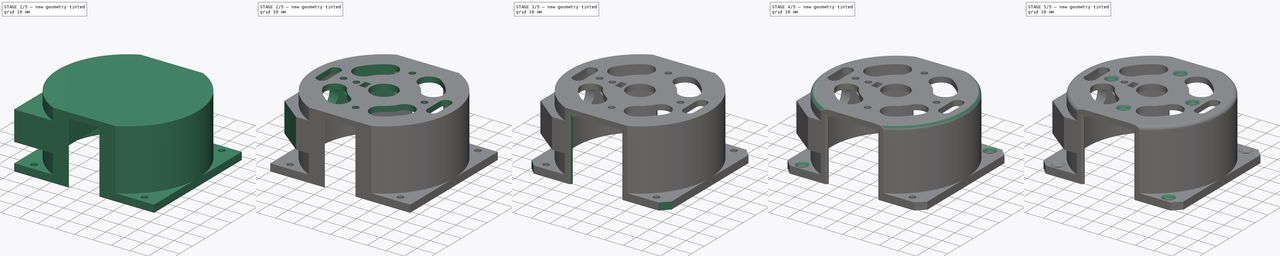
[diagram: build sequence overview — one tinted view per stage of 5, left to right]
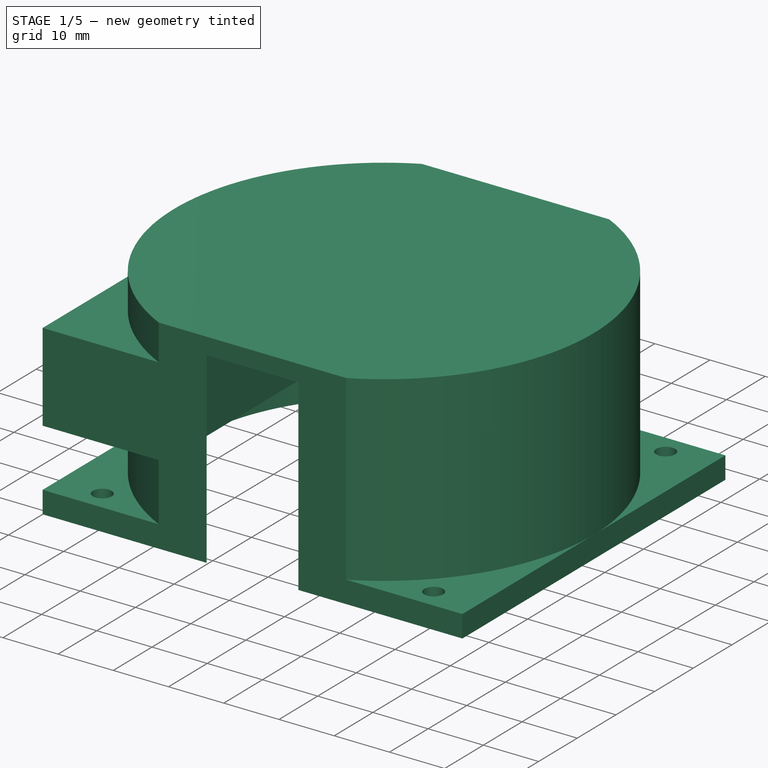
[diagram: stage 1 of 5 — iso view after this stage's code; geometry added in this stage tinted green]
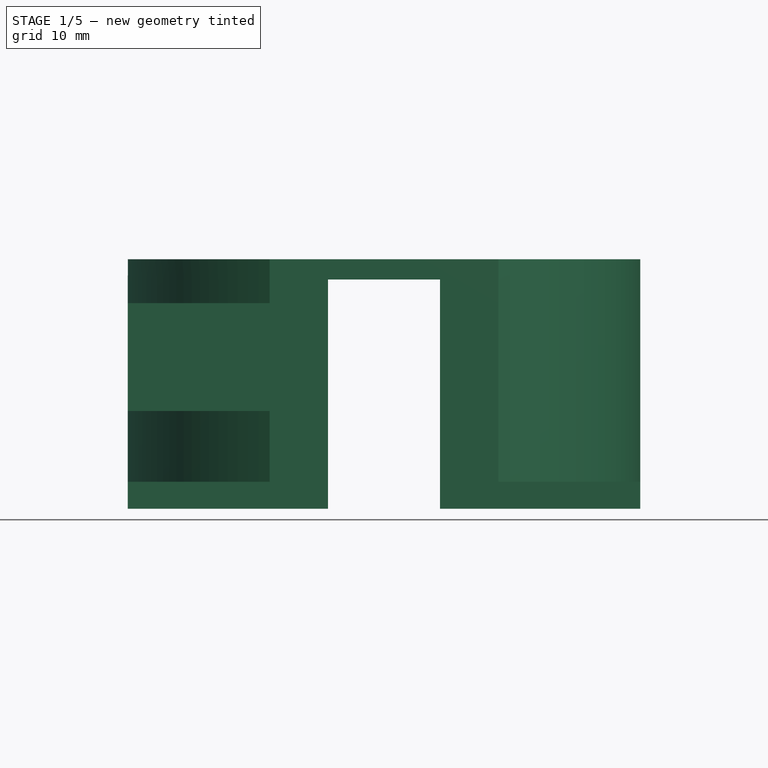
[diagram: stage 1 of 5 — front view after this stage's code; geometry added in this stage tinted green]
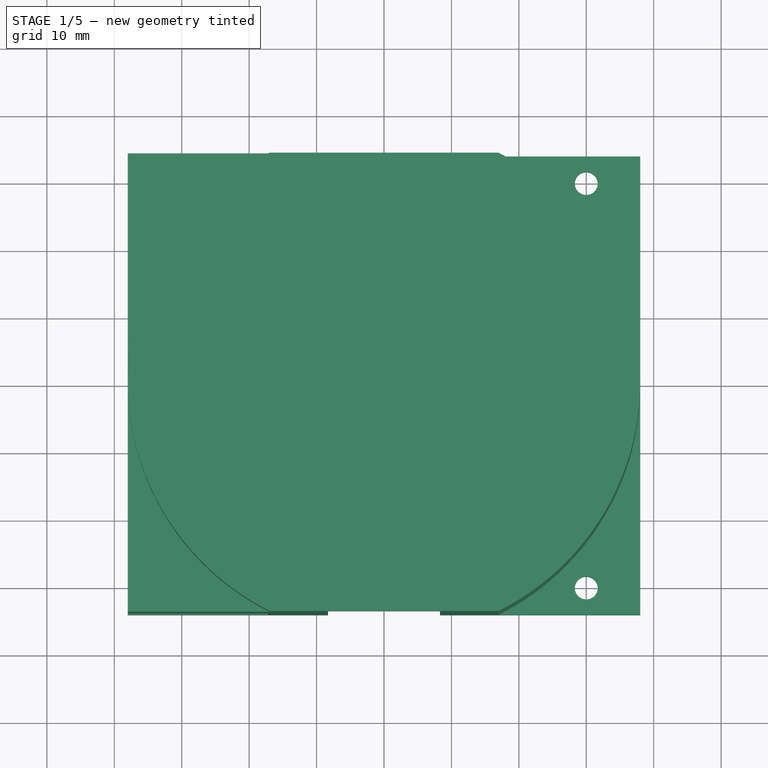
[diagram: stage 1 of 5 — top view after this stage's code; geometry added in this stage tinted green]
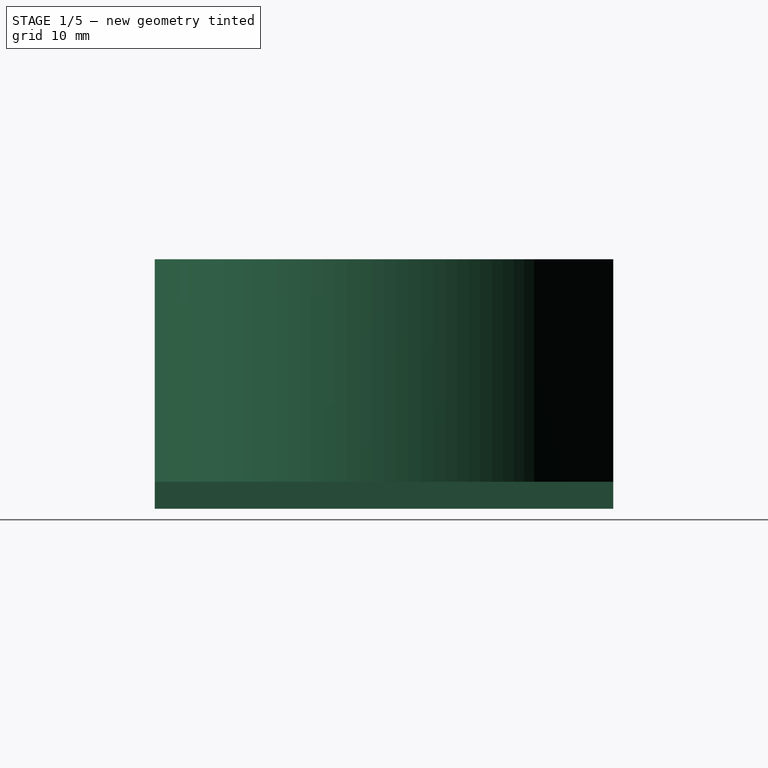
[diagram: stage 1 of 5 — right view after this stage's code; geometry added in this stage tinted green]
FCSTD DOCUMENT  (FreeCAD 0.16R6706 (Git))
Label: MotorMountMT5208V3
License: All rights reserved
LicenseURL: http://en.wikipedia.org/wiki/All_rights_reserved
objects: Sketcher::SketchObject×12, PartDesign::Pocket×9, PartDesign::Chamfer×8, PartDesign::Fillet×6, PartDesign::Pad×3
note: 50 computed .brp shape members not serialized (recipe doc carries the construction recipe); baked Part::Feature solids carry a one-line shape summary decoded from their .brp

FEATURE [Sketcher::SketchObject] Sketch
  sketch-geometry (14):
    g0: Circle CenterX=0 CenterY=0 CenterZ=0 NormalX=0 NormalY=0 NormalZ=1 Radius=35
    g1: LineSegment [constr] StartX=-30 StartY=30 StartZ=0 EndX=30 EndY=30 EndZ=0
    g2: LineSegment [constr] StartX=30 StartY=30 StartZ=0 EndX=30 EndY=-30 EndZ=0
    g3: LineSegment [constr] StartX=30 StartY=-30 StartZ=0 EndX=-30 EndY=-30 EndZ=0
    g4: LineSegment [constr] StartX=-30 StartY=-30 StartZ=0 EndX=-30 EndY=30 EndZ=0
    g5: Circle CenterX=-30 CenterY=30 CenterZ=0 NormalX=0 NormalY=0 NormalZ=1 Radius=1.7
    g6: Circle CenterX=30 CenterY=30 CenterZ=0 NormalX=0 NormalY=0 NormalZ=1 Radius=1.7
    g7: Circle CenterX=30 CenterY=-30 CenterZ=0 NormalX=0 NormalY=0 NormalZ=1 Radius=1.7
    g8: Circle CenterX=-30 CenterY=-30 CenterZ=0 NormalX=0 NormalY=0 NormalZ=1 Radius=1.7
    g9: Circle [constr] CenterX=30 CenterY=30 CenterZ=0 NormalX=0 NormalY=0 NormalZ=1 Radius=3
    g10: LineSegment StartX=-38 StartY=38 StartZ=0 EndX=38 EndY=38 EndZ=0
    g11: LineSegment StartX=38 StartY=38 StartZ=0 EndX=38 EndY=-38 EndZ=0
    g12: LineSegment StartX=38 StartY=-38 StartZ=0 EndX=-38 EndY=-38 EndZ=0
    g13: LineSegment StartX=-38 StartY=-38 StartZ=0 EndX=-38 EndY=38 EndZ=0
  constraints (34):
    c: Radius(g0) = 35
    c: Coincident(g1,g2)
    c: Coincident(g2,g3)
    c: Coincident(g3,g4)
    c: Coincident(g4,g1)
    c: Horizontal(g1)
    c: Horizontal(g3)
    c: Vertical(g2)
    c: Vertical(g4)
    c: Coincident(g5,g1)
    c: Coincident(g6,g1)
    c: Coincident(g7,g2)
    c: Coincident(g8,g3)
    c: Radius(g5) = 1.7
    c: Equal(g5,g8)
    c: Equal(g5,g7)
    c: Equal(g5,g6)
    c: Symmetric(g1,g2,g-1)
    c: Equal(g1,g2)
    c: Coincident(g9,g1)
    c: Radius(g9) = 3
    c: DistanceX(g1,g1) = 60
    c: Coincident(g10,g11)
    c: Coincident(g11,g12)
    c: Coincident(g12,g13)
    c: Coincident(g13,g10)
    c: Horizontal(g10)
    c: Horizontal(g12)
    c: Vertical(g11)
    c: Vertical(g13)
    c: Symmetric(g11,g10,g-1)
    c: Equal(g13,g10)
    c: DistanceY(g13,g13) = 76
    c: Coincident(g-1,g0)
FEATURE [PartDesign::Pad] Pad
  Length = 34
  Length2 = 100
  Sketch = -> Sketch
  Type = 0
FEATURE [Sketcher::SketchObject] Sketch001
  Placement = pos=(0,0,34) rot=(0,0,1;0rad)
  Support = -> Pad [Face11]
  sketch-geometry (2):
    g0: Circle CenterX=0 CenterY=0 CenterZ=0 NormalX=0 NormalY=0 NormalZ=1 Radius=38
    g1: Circle CenterX=0 CenterY=0 CenterZ=0 NormalX=0 NormalY=0 NormalZ=1 Radius=60
  constraints (4):
    c: Coincident(g0,g-1)
    c: Coincident(g1,g-1)
    c: Radius(g1) = 60
    c: Radius(g0) = 38
FEATURE [PartDesign::Pocket] Pocket
  Length = 30
  Sketch = -> Sketch001
  Type = 0
FEATURE [Sketcher::SketchObject] Sketch002
  Placement = pos=(0,0,34) rot=(0,0,1;0rad)
  Support = -> Pocket [Face17]
  sketch-geometry (1):
    g0: Circle CenterX=0 CenterY=0 CenterZ=0 NormalX=0 NormalY=0 NormalZ=1 Radius=38
  constraints (2):
    c: Coincident(g0,g-1)
    c: Radius(g0) = 38
FEATURE [PartDesign::Pad] Pad001
  Length = 3
  Length2 = 100
  Sketch = -> Sketch002
  Type = 0
FEATURE [Sketcher::SketchObject] Sketch003
  Placement = pos=(0,0,37) rot=(0,0,1;0rad)
  Support = -> Pad001 [Face21]
  sketch-geometry (8):
    g0: LineSegment StartX=-40 StartY=34 StartZ=0 EndX=40 EndY=34 EndZ=0
    g1: LineSegment StartX=40 StartY=34 StartZ=0 EndX=40 EndY=-34 EndZ=0
    g2: LineSegment StartX=40 StartY=-34 StartZ=0 EndX=-40 EndY=-34 EndZ=0
    g3: LineSegment StartX=-40 StartY=-34 StartZ=0 EndX=-40 EndY=34 EndZ=0
    g4: LineSegment StartX=-50 StartY=50 StartZ=0 EndX=50 EndY=50 EndZ=0
    g5: LineSegment StartX=50 StartY=50 StartZ=0 EndX=50 EndY=-50 EndZ=0
    g6: LineSegment StartX=50 StartY=-50 StartZ=0 EndX=-50 EndY=-50 EndZ=0
    g7: LineSegment StartX=-50 StartY=-50 StartZ=0 EndX=-50 EndY=50 EndZ=0
  constraints (22):
    c: Coincident(g0,g1)
    c: Coincident(g1,g2)
    c: Coincident(g2,g3)
    c: Coincident(g3,g0)
    c: Horizontal(g0)
    c: Horizontal(g2)
    c: Vertical(g1)
    c: Vertical(g3)
    c: Symmetric(g0,g2,g-1)
    c: DistanceY(g1,g1) = 68
    c: DistanceX(g0,g0) = 80
    c: Coincident(g4,g5)
    c: Coincident(g5,g6)
    c: Coincident(g6,g7)
    c: Coincident(g7,g4)
    c: Horizontal(g4)
    c: Horizontal(g6)
    c: Vertical(g5)
    c: Vertical(g7)
    c: Symmetric(g4,g6,g-1)
    c: Equal(g7,g4)
    c: DistanceX(g4,g4) = 100
FEATURE [PartDesign::Pocket] Pocket001
  Length = 5
  Sketch = -> Sketch003
  Type = 1
FEATURE [Sketcher::SketchObject] Sketch004
  Placement = pos=(-38,0,0) rot=(0.57735,-0.57735,-0.57735;2.0944rad)
  Support = -> Pocket001 [Face15]
  sketch-geometry (14):
    g0: LineSegment StartX=-34 StartY=30.5 StartZ=0 EndX=34 EndY=30.5 EndZ=0
    g1: LineSegment StartX=34 StartY=30.5 StartZ=0 EndX=34 EndY=14.5 EndZ=0
    g2: LineSegment StartX=34 StartY=14.5 StartZ=0 EndX=-34 EndY=14.5 EndZ=0
    g3: LineSegment StartX=-34 StartY=14.5 StartZ=0 EndX=-34 EndY=30.5 EndZ=0
    g4: Circle [constr] CenterX=-17.5 CenterY=22.5 CenterZ=0 NormalX=0 NormalY=0 NormalZ=1 Radius=1.7
    g5: Circle [constr] CenterX=17.5 CenterY=22.5 CenterZ=0 NormalX=0 NormalY=0 NormalZ=1 Radius=1.7
    g6: GeomPoint [constr] X=0 Y=22.5 Z=0
    g7: LineSegment [constr] StartX=-17.5 StartY=22.5 StartZ=0 EndX=17.5 EndY=22.5 EndZ=0
    g8: LineSegment [constr] StartX=23 StartY=30.5 StartZ=0 EndX=23 EndY=14.5 EndZ=0
    g9: LineSegment [constr] StartX=-23 StartY=30.5 StartZ=0 EndX=-23 EndY=14.5 EndZ=0
    g10: ArcOfCircle [constr] CenterX=-5 CenterY=22.5 CenterZ=0 NormalX=0 NormalY=0 NormalZ=1 Radius=7 StartAngle=1.5708 EndAngle=4.71239
    g11: ArcOfCircle [constr] CenterX=5 CenterY=22.5 CenterZ=0 NormalX=0 NormalY=0 NormalZ=1 Radius=7 StartAngle=4.71239 EndAngle=7.85398
    g12: LineSegment [constr] StartX=-5 StartY=15.5 StartZ=0 EndX=5 EndY=15.5 EndZ=0
    g13: LineSegment [constr] StartX=-5 StartY=29.5 StartZ=0 EndX=5 EndY=29.5 EndZ=0
  constraints (36):
    c: Coincident(g0,g1)
    c: Coincident(g1,g2)
    c: Coincident(g2,g3)
    c: Coincident(g3,g0)
    c: Horizontal(g2)
    c: Vertical(g1)
    c: Vertical(g3)
    c: Symmetric(g0,g0,g-2)
    c: DistanceX(g0,g0) = 68
    c: DistanceY(g1,g0) = 16
    c: Symmetric(g2,g0,g6)
    c: Symmetric(g4,g5,g6)
    c: Radius(g4) = 1.7
    c: Equal(g4,g5)
    c: DistanceX(g4,g5) = 35
    c: Coincident(g7,g4)
    c: Coincident(g7,g5)
    c: Horizontal(g7)
    c: DistanceY(g-1,g6) = 22.5
    c: PointOnObject(g8,g0)
    c: Vertical(g8)
    c: PointOnObject(g9,g0)
    c: Vertical(g9)
    c: Symmetric(g8,g9,g-2)
    c: DistanceX(g9,g8) = 46
    c: PointOnObject(g9,g2)
    c: PointOnObject(g8,g2)
    c: Tangent(g10,g13) = 1.5708
    c: Tangent(g10,g12) = -1.5708
    c: Tangent(g12,g11) = -1.5708
    c: Tangent(g13,g11) = 1.5708
    c: Horizontal(g12)
    c: Equal(g10,g11)
    c: Symmetric(g11,g10,g6)
    c: DistanceX(g10,g11) = 10
    c: DistanceY(g11,g11) = 14
FEATURE [PartDesign::Pad] Pad002
  Length = 22
  Length2 = 100
  Reversed = true
  Sketch = -> Sketch004
  Type = 0
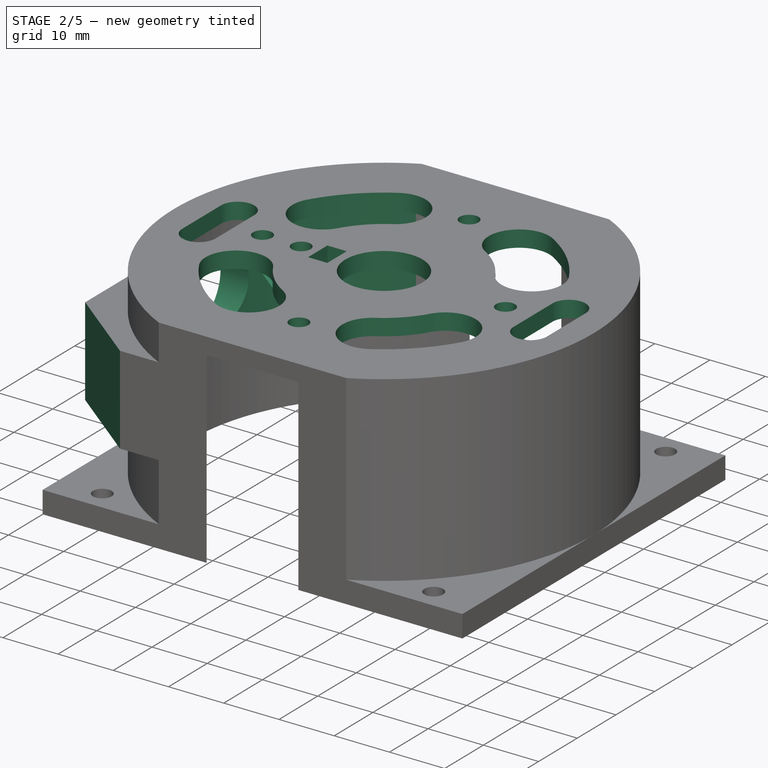
[diagram: stage 2 of 5 — iso view after this stage's code; geometry added in this stage tinted green]
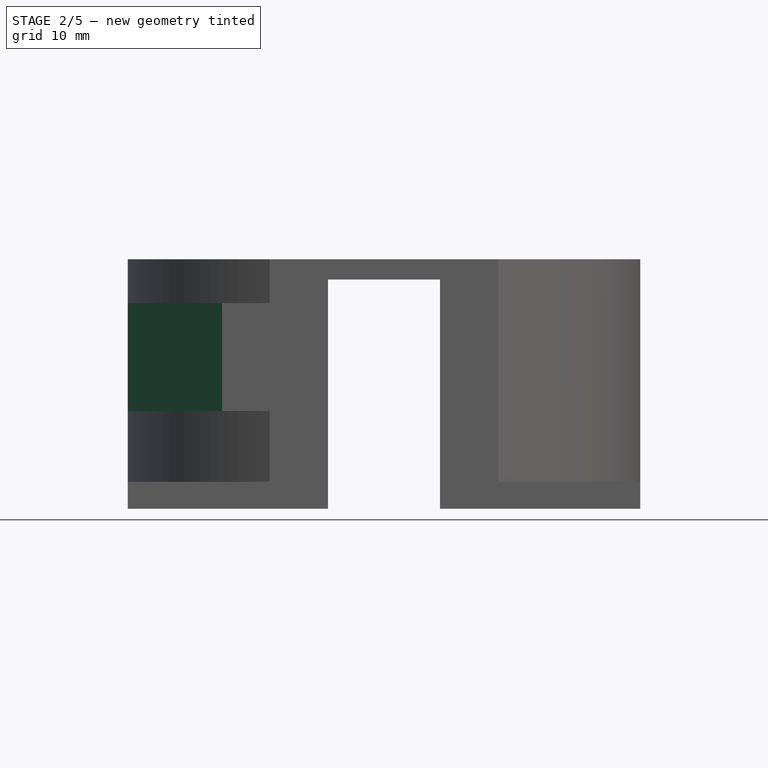
[diagram: stage 2 of 5 — front view after this stage's code; geometry added in this stage tinted green]
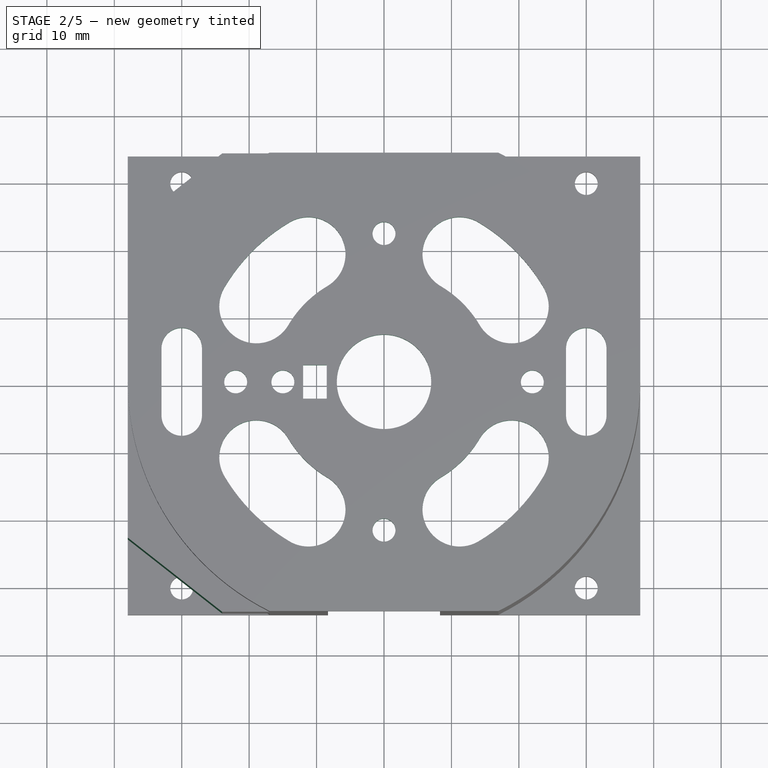
[diagram: stage 2 of 5 — top view after this stage's code; geometry added in this stage tinted green]
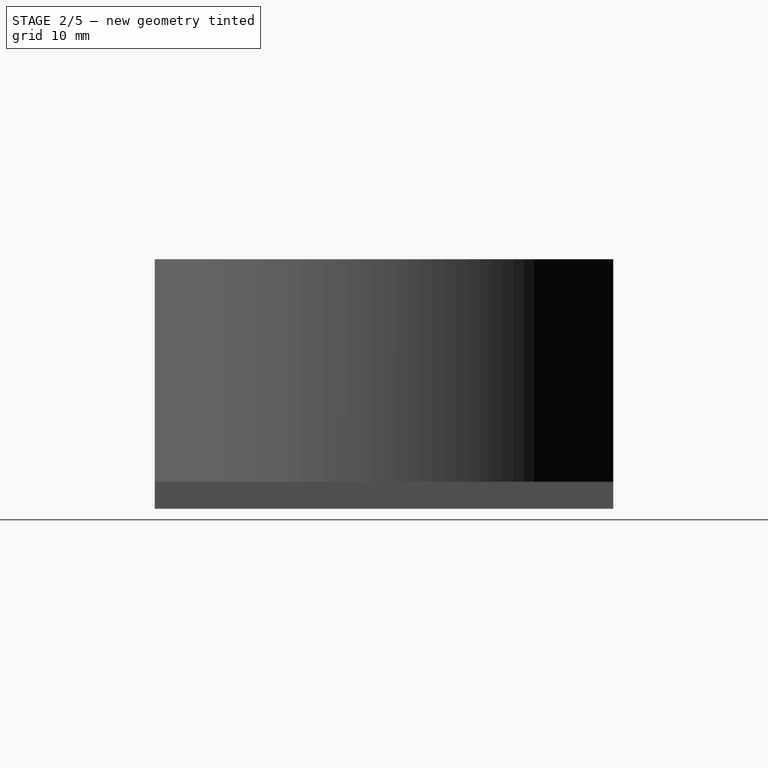
[diagram: stage 2 of 5 — right view after this stage's code; geometry added in this stage tinted green]
FEATURE [Sketcher::SketchObject] Sketch005
  Placement = pos=(0,0,14.5) rot=(1,0,0;3.14159rad)
  Support = -> Pad002 [Face37]
  sketch-geometry (7):
    g0: LineSegment StartX=-38 StartY=23 StartZ=0 EndX=-38 EndY=-23 EndZ=0
    g1: LineSegment StartX=-38 StartY=-23 StartZ=0 EndX=-24 EndY=-34 EndZ=0
    g2: LineSegment StartX=-24 StartY=-34 StartZ=0 EndX=-55 EndY=-34 EndZ=0
    g3: LineSegment StartX=-55 StartY=-34 StartZ=0 EndX=-55 EndY=34 EndZ=0
    g4: LineSegment StartX=-55 StartY=34 StartZ=0 EndX=-24 EndY=34 EndZ=0
    g5: LineSegment StartX=-24 StartY=34 StartZ=0 EndX=-38 EndY=23 EndZ=0
    g6: LineSegment [constr] StartX=-24 StartY=34 StartZ=0 EndX=-24 EndY=-34 EndZ=0
  constraints (20):
    c: Vertical(g0)
    c: Coincident(g0,g1)
    c: Coincident(g1,g2)
    c: Horizontal(g2)
    c: Coincident(g2,g3)
    c: Vertical(g3)
    c: Coincident(g3,g4)
    c: Horizontal(g4)
    c: Coincident(g4,g5)
    c: Coincident(g5,g0)
    c: DistanceY(g0,g0) = 46
    c: Coincident(g6,g4)
    c: Coincident(g6,g1)
    c: Vertical(g6)
    c: DistanceY(g3,g3) = 68
    c: Symmetric(g3,g2,g-1)
    c: Symmetric(g0,g0,g-1)
    c: DistanceX(g4,g-1) = 24
    c: DistanceX(g0,g-1) = 38
    c: DistanceX(g3,g-1) = 55
FEATURE [PartDesign::Pocket] Pocket002
  Length = 25
  Sketch = -> Sketch005
  Type = 0
FEATURE [Sketcher::SketchObject] Sketch029
  Placement = pos=(-16,0,0) rot=(0.57735,0.57735,0.57735;2.0944rad)
  Support = -> Pocket002 [Face35]
  sketch-geometry (15):
    g0: LineSegment StartX=-15.8834 StartY=19.7 StartZ=0 EndX=-14.2668 EndY=22.5 EndZ=0
    g1: LineSegment StartX=-14.2668 StartY=22.5 StartZ=0 EndX=-15.8834 EndY=25.3 EndZ=0
    g2: LineSegment StartX=-15.8834 StartY=25.3 StartZ=0 EndX=-19.1166 EndY=25.3 EndZ=0
    g3: LineSegment StartX=-19.1166 StartY=25.3 StartZ=0 EndX=-20.7332 EndY=22.5 EndZ=0
    g4: LineSegment StartX=-20.7332 StartY=22.5 StartZ=0 EndX=-19.1166 EndY=19.7 EndZ=0
    g5: LineSegment StartX=-19.1166 StartY=19.7 StartZ=0 EndX=-15.8834 EndY=19.7 EndZ=0
    g6: Circle [constr] CenterX=-17.5 CenterY=22.5 CenterZ=0 NormalX=0 NormalY=0 NormalZ=1 Radius=3.23316
    g7: LineSegment StartX=14.2668 StartY=22.5 StartZ=0 EndX=15.8834 EndY=19.7 EndZ=0
    g8: LineSegment StartX=15.8834 StartY=19.7 StartZ=0 EndX=19.1166 EndY=19.7 EndZ=0
    g9: LineSegment StartX=19.1166 StartY=19.7 StartZ=0 EndX=20.7332 EndY=22.5 EndZ=0
    g10: LineSegment StartX=20.7332 StartY=22.5 StartZ=0 EndX=19.1166 EndY=25.3 EndZ=0
    g11: LineSegment StartX=19.1166 StartY=25.3 StartZ=0 EndX=15.8834 EndY=25.3 EndZ=0
    g12: LineSegment StartX=15.8834 StartY=25.3 StartZ=0 EndX=14.2668 EndY=22.5 EndZ=0
    g13: Circle [constr] CenterX=17.5 CenterY=22.5 CenterZ=0 NormalX=0 NormalY=0 NormalZ=1 Radius=3.23316
    g14: LineSegment [constr] StartX=-17.5 StartY=22.5 StartZ=0 EndX=17.5 EndY=22.5 EndZ=0
  constraints (36):
    c: Coincident(g0,g1)
    c: Coincident(g1,g2)
    c: Coincident(g2,g3)
    c: Coincident(g3,g4)
    c: Coincident(g4,g5)
    c: Coincident(g5,g0)
    c: Equal(g0, g1-g5) x5
    c: PointOnObject(g0,g6)
    c: PointOnObject(g1,g6)
    c: PointOnObject(g2,g6)
    c: PointOnObject(g3,g6)
    c: PointOnObject(g4,g6)
    c: PointOnObject(g5,g6)
    c: Horizontal(g5)
    c: DistanceY(g0,g1) = 5.6
    c: Coincident(g7,g8)
    c: Coincident(g8,g9)
    c: Coincident(g9,g10)
    c: Coincident(g10,g11)
    c: Coincident(g11,g12)
    c: Coincident(g12,g7)
    c: Equal(g7, g8-g12) x5
    c: PointOnObject(g7,g13)
    c: PointOnObject(g8,g13)
    c: PointOnObject(g9,g13)
    c: PointOnObject(g10,g13)
    c: PointOnObject(g11,g13)
    c: PointOnObject(g12,g13)
    c: Horizontal(g11)
    c: DistanceY(g7,g11) = 5.6
    c: Coincident(g14,g6)
    c: Coincident(g14,g13)
    c: Horizontal(g14)
    c: DistanceX(g14,g14) = 35
    c: Symmetric(g6,g13,g-2)
    c: DistanceY(g-1,g6) = 22.5
FEATURE [PartDesign::Pocket] Pocket003
  Length = 20
  Sketch = -> Sketch029
  Type = 0
FEATURE [Sketcher::SketchObject] Sketch030
  Placement = pos=(0,0,14.5) rot=(1,0,0;3.14159rad)
  Support = -> Pocket003 [Face36]
  sketch-geometry (1):
    g0: Circle CenterX=0 CenterY=0 CenterZ=0 NormalX=0 NormalY=0 NormalZ=1 Radius=35
  constraints (2):
    c: Coincident(g0,g-1)
    c: Radius(g0) = 35
FEATURE [PartDesign::Pocket] Pocket004
  Length = 18
  Sketch = -> Sketch030
  Type = 0
FEATURE [Sketcher::SketchObject] Sketch031
  Placement = pos=(-38,0,0) rot=(0.57735,-0.57735,-0.57735;2.0944rad)
  Support = -> Pocket004 [Face59]
  sketch-geometry (14):
    g0: LineSegment [constr] StartX=-23 StartY=30.5 StartZ=0 EndX=23 EndY=30.5 EndZ=0
    g1: LineSegment [constr] StartX=23 StartY=30.5 StartZ=0 EndX=23 EndY=14.5 EndZ=0
    g2: LineSegment [constr] StartX=23 StartY=14.5 StartZ=0 EndX=-23 EndY=14.5 EndZ=0
    g3: LineSegment [constr] StartX=-23 StartY=14.5 StartZ=0 EndX=-23 EndY=30.5 EndZ=0
    g4: Circle CenterX=-17.5 CenterY=22.5 CenterZ=0 NormalX=0 NormalY=0 NormalZ=1 Radius=1.7
    g5: Circle CenterX=17.5 CenterY=22.5 CenterZ=0 NormalX=0 NormalY=0 NormalZ=1 Radius=1.7
    g6: GeomPoint [constr] X=0 Y=22.5 Z=0
    g7: LineSegment [constr] StartX=-17.5 StartY=22.5 StartZ=0 EndX=17.5 EndY=22.5 EndZ=0
    g8: LineSegment [constr] StartX=23 StartY=30.5 StartZ=0 EndX=23 EndY=14.5 EndZ=0
    g9: LineSegment [constr] StartX=-23 StartY=30.5 StartZ=0 EndX=-23 EndY=14.5 EndZ=0
    g10: ArcOfCircle CenterX=-5 CenterY=22.5 CenterZ=0 NormalX=0 NormalY=0 NormalZ=1 Radius=7 StartAngle=1.5708 EndAngle=4.71239
    g11: ArcOfCircle CenterX=5 CenterY=22.5 CenterZ=0 NormalX=0 NormalY=0 NormalZ=1 Radius=7 StartAngle=4.71239 EndAngle=7.85398
    g12: LineSegment StartX=-5 StartY=15.5 StartZ=0 EndX=5 EndY=15.5 EndZ=0
    g13: LineSegment StartX=-5 StartY=29.5 StartZ=0 EndX=5 EndY=29.5 EndZ=0
  constraints (36):
    c: Coincident(g0,g1)
    c: Coincident(g1,g2)
    c: Coincident(g2,g3)
    c: Coincident(g3,g0)
    c: Horizontal(g2)
    c: Vertical(g1)
    c: Vertical(g3)
    c: Symmetric(g0,g0,g-2)
    c: DistanceX(g0,g0) = 46
    c: DistanceY(g1,g0) = 16
    c: Symmetric(g2,g0,g6)
    c: Symmetric(g4,g5,g6)
    c: Radius(g4) = 1.7
    c: Equal(g4,g5)
    c: DistanceX(g4,g5) = 35
    c: Coincident(g7,g4)
    c: Coincident(g7,g5)
    c: Horizontal(g7)
    c: DistanceY(g-1,g6) = 22.5
    c: PointOnObject(g8,g0)
    c: Vertical(g8)
    c: PointOnObject(g9,g0)
    c: Vertical(g9)
    c: Symmetric(g8,g9,g-2)
    c: DistanceX(g9,g8) = 46
    c: PointOnObject(g9,g2)
    c: PointOnObject(g8,g2)
    c: Tangent(g10,g13) = 1.5708
    c: Tangent(g10,g12) = -1.5708
    c: Tangent(g12,g11) = -1.5708
    c: Tangent(g13,g11) = 1.5708
    c: Horizontal(g12)
    c: Equal(g10,g11)
    c: Symmetric(g11,g10,g6)
    c: DistanceX(g10,g11) = 10
    c: DistanceY(g11,g11) = 14
FEATURE [PartDesign::Pocket] Pocket005
  Length = 30
  Sketch = -> Sketch031
  Type = 0
FEATURE [Sketcher::SketchObject] Sketch022  label="MotorMountScrewsAndVents"
  Placement = pos=(0,0,37) rot=(0,0,1;0rad)
  Support = -> Pocket005 [Face11]
  sketch-geometry (54):
    g0: Circle CenterX=0 CenterY=22 CenterZ=0 NormalX=0 NormalY=0 NormalZ=1 Radius=1.7
    g1: Circle CenterX=0 CenterY=-22 CenterZ=0 NormalX=0 NormalY=0 NormalZ=1 Radius=1.7
    g2: Circle CenterX=-22 CenterY=0 CenterZ=0 NormalX=0 NormalY=0 NormalZ=1 Radius=1.7
    g3: Circle CenterX=22 CenterY=0 CenterZ=0 NormalX=0 NormalY=0 NormalZ=1 Radius=1.7
    g4: Circle [constr] CenterX=-8.83883 CenterY=8.83883 CenterZ=0 NormalX=0 NormalY=0 NormalZ=1 Radius=1.7
    g5: Circle [constr] CenterX=8.83883 CenterY=8.83883 CenterZ=0 NormalX=0 NormalY=0 NormalZ=1 Radius=1.7
    g6: Circle [constr] CenterX=8.83883 CenterY=-8.83883 CenterZ=0 NormalX=0 NormalY=0 NormalZ=1 Radius=1.7
    g7: Circle [constr] CenterX=-8.83883 CenterY=-8.83883 CenterZ=0 NormalX=0 NormalY=0 NormalZ=1 Radius=1.7
    g8: Circle [constr] CenterX=0 CenterY=0 CenterZ=0 NormalX=0 NormalY=0 NormalZ=1 Radius=12.5
    g9: LineSegment [constr] StartX=-8.83883 StartY=8.83883 StartZ=0 EndX=8.83883 EndY=8.83883 EndZ=0
    g10: LineSegment [constr] StartX=8.83883 StartY=8.83883 StartZ=0 EndX=8.83883 EndY=-8.83883 EndZ=0
    g11: LineSegment [constr] StartX=8.83883 StartY=-8.83883 StartZ=0 EndX=-8.83883 EndY=-8.83883 EndZ=0
    g12: LineSegment [constr] StartX=-8.83883 StartY=-8.83883 StartZ=0 EndX=-8.83883 EndY=8.83883 EndZ=0
    g13: Circle CenterX=0 CenterY=0 CenterZ=0 NormalX=0 NormalY=0 NormalZ=1 Radius=7
    g14: Circle [constr] CenterX=0 CenterY=0 CenterZ=0 NormalX=0 NormalY=0 NormalZ=1 Radius=22
    g15: ArcOfCircle CenterX=-18.9288 CenterY=11.2116 CenterZ=0 NormalX=0 NormalY=0 NormalZ=1 Radius=5.5 StartAngle=2.60685 EndAngle=5.74844
    g16: ArcOfCircle CenterX=-11.2116 CenterY=18.9288 CenterZ=0 NormalX=0 NormalY=0 NormalZ=1 Radius=5.5 StartAngle=5.24713 EndAngle=8.38872
    g17: GeomPoint [constr] X=-15.5563 Y=15.5563 Z=0
    g18: ArcOfCircle CenterX=0 CenterY=0 CenterZ=0 NormalX=0 NormalY=0 NormalZ=1 Radius=27.5 StartAngle=2.10554 EndAngle=2.60685
    g19: ArcOfCircle CenterX=0 CenterY=0 CenterZ=0 NormalX=0 NormalY=0 NormalZ=1 Radius=16.5 StartAngle=2.10554 EndAngle=2.60685
    g20: LineSegment [constr] StartX=0 StartY=0 StartZ=0 EndX=-14.0145 EndY=23.661 EndZ=0
    g21: LineSegment [constr] StartX=0 StartY=0 StartZ=0 EndX=-23.661 EndY=14.0145 EndZ=0
    g22: LineSegment [constr] StartX=0 StartY=0 StartZ=0 EndX=-15.5563 EndY=15.5563 EndZ=0
    g23: LineSegment [constr] StartX=0 StartY=0 StartZ=0 EndX=23.661 EndY=-14.0145 EndZ=0
    g24: ArcOfCircle CenterX=0 CenterY=0 CenterZ=0 NormalX=0 NormalY=0 NormalZ=1 Radius=16.5 StartAngle=5.24713 EndAngle=5.74844
    g25: ArcOfCircle CenterX=11.2116 CenterY=-18.9288 CenterZ=0 NormalX=0 NormalY=0 NormalZ=1 Radius=5.5 StartAngle=2.10554 EndAngle=5.24713
    g26: ArcOfCircle CenterX=0 CenterY=0 CenterZ=0 NormalX=0 NormalY=0 NormalZ=1 Radius=27.5 StartAngle=5.24713 EndAngle=5.74844
    g27: ArcOfCircle CenterX=18.9288 CenterY=-11.2116 CenterZ=0 NormalX=0 NormalY=0 NormalZ=1 Radius=5.5 StartAngle=5.74844 EndAngle=8.89004
    g28: LineSegment [constr] StartX=0 StartY=0 StartZ=0 EndX=14.0145 EndY=-23.661 EndZ=0
    g29: LineSegment [constr] StartX=0 StartY=0 StartZ=0 EndX=23.661 EndY=14.0145 EndZ=0
    g30: LineSegment [constr] StartX=0 StartY=0 StartZ=0 EndX=14.0145 EndY=23.661 EndZ=0
    g31: ArcOfCircle CenterX=0 CenterY=0 CenterZ=0 NormalX=0 NormalY=0 NormalZ=1 Radius=27.5 StartAngle=0.534743 EndAngle=1.03605
    g32: ArcOfCircle CenterX=18.9288 CenterY=11.2116 CenterZ=0 NormalX=0 NormalY=0 NormalZ=1 Radius=5.5 StartAngle=3.67634 EndAngle=6.81793
    g33: ArcOfCircle CenterX=0 CenterY=0 CenterZ=0 NormalX=0 NormalY=0 NormalZ=1 Radius=16.5 StartAngle=0.534743 EndAngle=1.03605
    g34: ArcOfCircle CenterX=11.2116 CenterY=18.9288 CenterZ=0 NormalX=0 NormalY=0 NormalZ=1 Radius=5.5 StartAngle=1.03605 EndAngle=4.17765
    g35: ArcOfCircle CenterX=-11.2116 CenterY=-18.9288 CenterZ=0 NormalX=0 NormalY=0 NormalZ=1 Radius=5.5 StartAngle=4.17765 EndAngle=7.31924
    g36: LineSegment [constr] StartX=0 StartY=0 StartZ=0 EndX=-14.0145 EndY=-23.661 EndZ=0
    g37: ArcOfCircle CenterX=0 CenterY=0 CenterZ=0 NormalX=0 NormalY=0 NormalZ=1 Radius=27.5 StartAngle=3.67634 EndAngle=4.17765
    g38: ArcOfCircle CenterX=0 CenterY=0 CenterZ=0 NormalX=0 NormalY=0 NormalZ=1 Radius=16.5 StartAngle=3.67634 EndAngle=4.17765
    g39: ArcOfCircle CenterX=-18.9288 CenterY=-11.2116 CenterZ=0 NormalX=0 NormalY=0 NormalZ=1 Radius=5.5 StartAngle=0.534743 EndAngle=3.67634
    g40: LineSegment [constr] StartX=0 StartY=0 StartZ=0 EndX=-23.661 EndY=-14.0145 EndZ=0
    g41: Circle CenterX=-15 CenterY=0 CenterZ=0 NormalX=0 NormalY=0 NormalZ=1 Radius=1.7
    g42: LineSegment StartX=-12 StartY=2.5 StartZ=0 EndX=-8.5 EndY=2.5 EndZ=0
    g43: LineSegment StartX=-8.5 StartY=2.5 StartZ=0 EndX=-8.5 EndY=-2.5 EndZ=0
    g44: LineSegment StartX=-8.5 StartY=-2.5 StartZ=0 EndX=-12 EndY=-2.5 EndZ=0
    g45: LineSegment StartX=-12 StartY=-2.5 StartZ=0 EndX=-12 EndY=2.5 EndZ=0
    g46: ArcOfCircle CenterX=-30 CenterY=5 CenterZ=0 NormalX=0 NormalY=0 NormalZ=1 Radius=3 StartAngle=0 EndAngle=3.14159
    g47: ArcOfCircle CenterX=-30 CenterY=-5 CenterZ=0 NormalX=0 NormalY=0 NormalZ=1 Radius=3 StartAngle=3.14159 EndAngle=6.28319
    g48: LineSegment StartX=-33 StartY=5 StartZ=0 EndX=-33 EndY=-5 EndZ=0
    g49: LineSegment StartX=-27 StartY=5 StartZ=0 EndX=-27 EndY=-5 EndZ=0
    g50: ArcOfCircle CenterX=30 CenterY=5 CenterZ=0 NormalX=0 NormalY=0 NormalZ=1 Radius=3 StartAngle=0 EndAngle=3.14159
    g51: ArcOfCircle CenterX=30 CenterY=-5 CenterZ=0 NormalX=0 NormalY=0 NormalZ=1 Radius=3 StartAngle=3.14159 EndAngle=6.28319
    g52: LineSegment StartX=27 StartY=5 StartZ=0 EndX=27 EndY=-5 EndZ=0
    g53: LineSegment StartX=33 StartY=5 StartZ=0 EndX=33 EndY=-5 EndZ=0
  constraints (151):
    c: PointOnObject(g1,g-2)
    c: PointOnObject(g2,g-1)
    c: PointOnObject(g3,g-1)
    c: Symmetric(g2,g3,g-1)
    c: Symmetric(g1,g0,g-1)
    c: Radius(g2) = 1.7
    c: Equal(g2,g1)
    c: Equal(g2,g3)
    c: Equal(g2,g0)
    c: Radius(g4) = 1.7
    c: Equal(g4,g7)
    c: Equal(g4,g6)
    c: Equal(g4,g5)
    c: Coincident(g8,g-1)
    c: Radius(g8) = 12.5
    c: PointOnObject(g6,g8)
    c: PointOnObject(g7,g8)
    c: PointOnObject(g5,g8)
    c: PointOnObject(g4,g8)
    c: Coincident(g9,g4)
    c: Coincident(g9,g5)
    c: Coincident(g10,g5)
    c: Coincident(g10,g6)
    c: Vertical(g10)
    c: Coincident(g11,g6)
    c: Coincident(g11,g7)
    c: Coincident(g12,g7)
    c: Coincident(g12,g4)
    c: Horizontal(g11)
    c: Vertical(g12)
    c: Coincident(g13,g-1)
    c: Radius(g13) = 7
    c: Coincident(g14,g-1)
    c: Radius(g14) = 22
    c: PointOnObject(g0,g14)
    c: PointOnObject(g2,g14)
    c: Equal(g12,g9)
    c: PointOnObject(g16,g14)
    c: Radius(g15) = 5.5
    c: PointOnObject(g17,g14)
    c: PointOnObject(g17,g16)
    c: PointOnObject(g17,g15)
    c: Coincident(g18,g-1)
    c: Coincident(g19,g-1)
    c: Coincident(g16,g18)
    c: Coincident(g15,g19)
    c: Coincident(g16,g19)
    c: Coincident(g18,g15)
    c: Coincident(g15,g19)
    c: Coincident(g20,g-1)
    c: Coincident(g20,g16)
    c: Coincident(g21,g-1)
    c: PointOnObject(g15,g21)
    c: PointOnObject(g15,g21)
    c: PointOnObject(g16,g20)
    c: PointOnObject(g16,g20)
    c: Coincident(g21,g15)
    c: Coincident(g22,g-1)
    c: Coincident(g22,g17)
    c: PointOnObject(g4,g22)
    c: Radius(g27) = 5.5
    c: Equal(g27,g25)
    c: Coincident(g25,g26)
    c: Coincident(g27,g24)
    c: Coincident(g25,g24)
    c: Coincident(g26,g27)
    c: Coincident(g27,g24)
    c: Coincident(g28,g25)
    c: PointOnObject(g27,g23)
    c: PointOnObject(g27,g23)
    c: PointOnObject(g25,g28)
    c: PointOnObject(g25,g28)
    c: Coincident(g23,g27)
    c: Coincident(g26,g24)
    c: Coincident(g26,g28)
    c: Coincident(g26,g23)
    c: Coincident(g26,g-1)
    c: PointOnObject(g25,g14)
    c: Parallel(g20,g28)
    c: Parallel(g21,g23)
    c: Radius(g32) = 5.5
    c: Coincident(g34,g31)
    c: Coincident(g32,g33)
    c: Coincident(g34,g33)
    c: Coincident(g31,g32)
    c: Coincident(g32,g33)
    c: Coincident(g30,g34)
    c: PointOnObject(g32,g29)
    c: PointOnObject(g32,g29)
    c: PointOnObject(g34,g30)
    c: PointOnObject(g34,g30)
    c: Coincident(g29,g32)
    c: Coincident(g29,g33)
    c: Coincident(g29,g31)
    c: Coincident(g29,g30)
    c: Coincident(g29,g-1)
    c: PointOnObject(g34,g14)
    c: Radius(g39) = 5.5
    c: Coincident(g35,g37)
    c: Coincident(g39,g38)
    c: Coincident(g35,g38)
    c: Coincident(g37,g39)
    c: Coincident(g39,g38)
    c: Coincident(g36,g35)
    c: PointOnObject(g39,g40)
    c: PointOnObject(g39,g40)
    c: PointOnObject(g35,g36)
    c: PointOnObject(g35,g36)
    c: Coincident(g40,g39)
    c: Coincident(g40,g38)
    c: Coincident(g40,g37)
    c: Coincident(g40,g36)
    c: Parallel(g36,g30)
    c: Parallel(g29,g40)
    c: Coincident(g36,g-1)
    c: PointOnObject(g39,g14)
    c: Symmetric(g39,g15,g-1)
    c: Symmetric(g35,g25,g-2)
    c: PointOnObject(g41,g-1)
    c: Equal(g41,g2)
    c: DistanceX(g2,g41) = 7
    c: Coincident(g42,g43)
    c: Coincident(g43,g44)
    c: Coincident(g44,g45)
    c: Coincident(g45,g42)
    c: Horizontal(g42)
    c: Horizontal(g44)
    c: Vertical(g43)
    c: Vertical(g45)
    c: DistanceX(g42,g42) = 3.5
    c: DistanceY(g43,g42) = 5
    c: Symmetric(g44,g42,g-1)
    c: DistanceX(g41,g42) = 3
    c: Tangent(g46,g49) = 1.5708
    c: Tangent(g46,g48) = -1.5708
    c: Tangent(g48,g47) = -1.5708
    c: Tangent(g49,g47) = 1.5708
    c: Vertical(g48)
    c: Equal(g46,g47)
    c: Symmetric(g47,g46,g-1)
    c: DistanceX(g47,g-1) = 27
    c: DistanceX(g47,g47) = 6
    c: DistanceY(g47,g46) = 10
    c: Tangent(g50,g53) = 1.5708
    c: Tangent(g50,g52) = -1.5708
    c: Tangent(g52,g51) = -1.5708
    c: Tangent(g53,g51) = 1.5708
    c: Vertical(g52)
    c: Equal(g50,g51)
    c: Symmetric(g51,g46,g-1)
    c: Symmetric(g50,g47,g-1)
FEATURE [PartDesign::Pocket] Pocket006
  Length = 5
  Sketch = -> Sketch022
  Type = 0
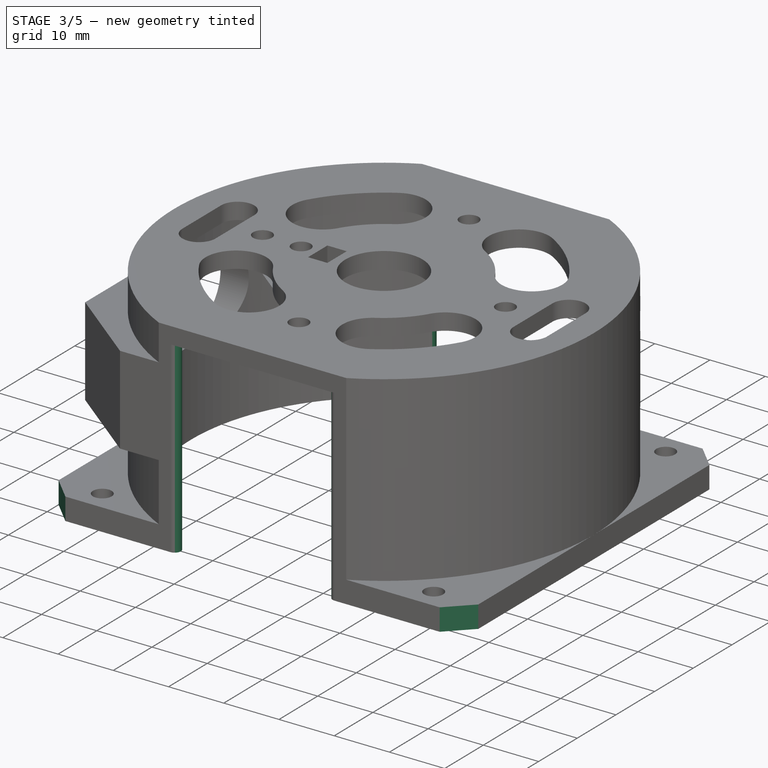
[diagram: stage 3 of 5 — iso view after this stage's code; geometry added in this stage tinted green]
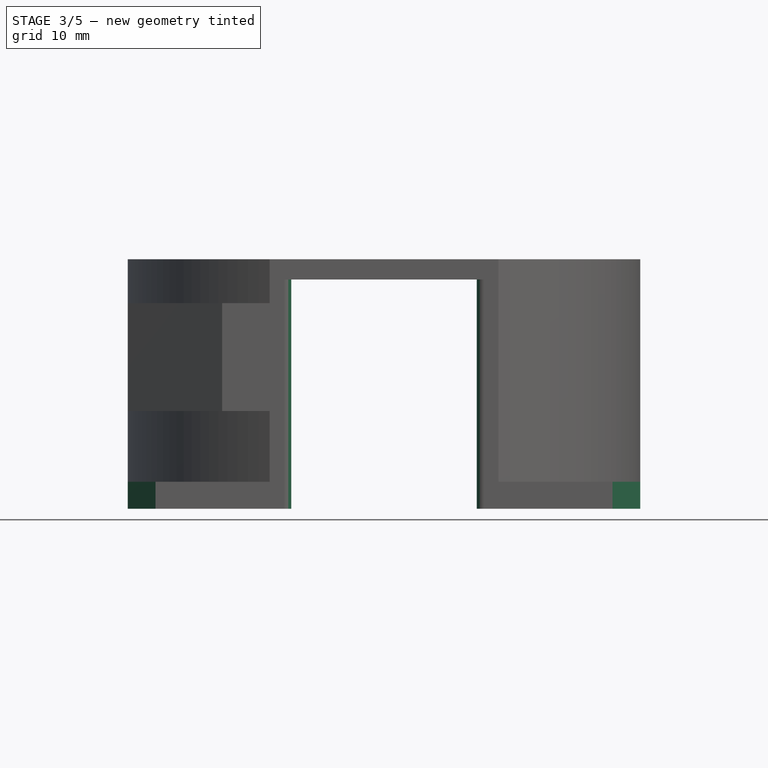
[diagram: stage 3 of 5 — front view after this stage's code; geometry added in this stage tinted green]
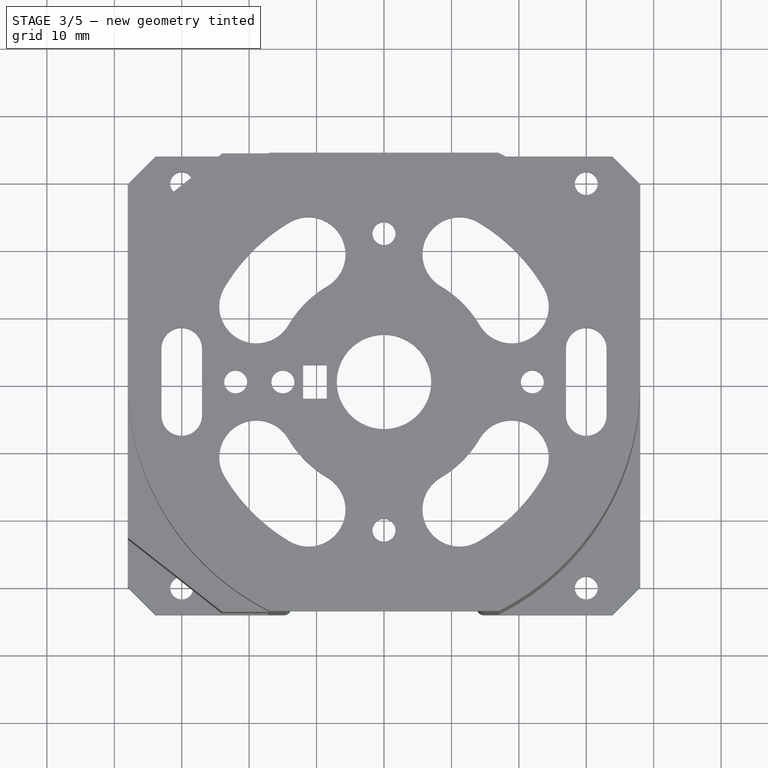
[diagram: stage 3 of 5 — top view after this stage's code; geometry added in this stage tinted green]
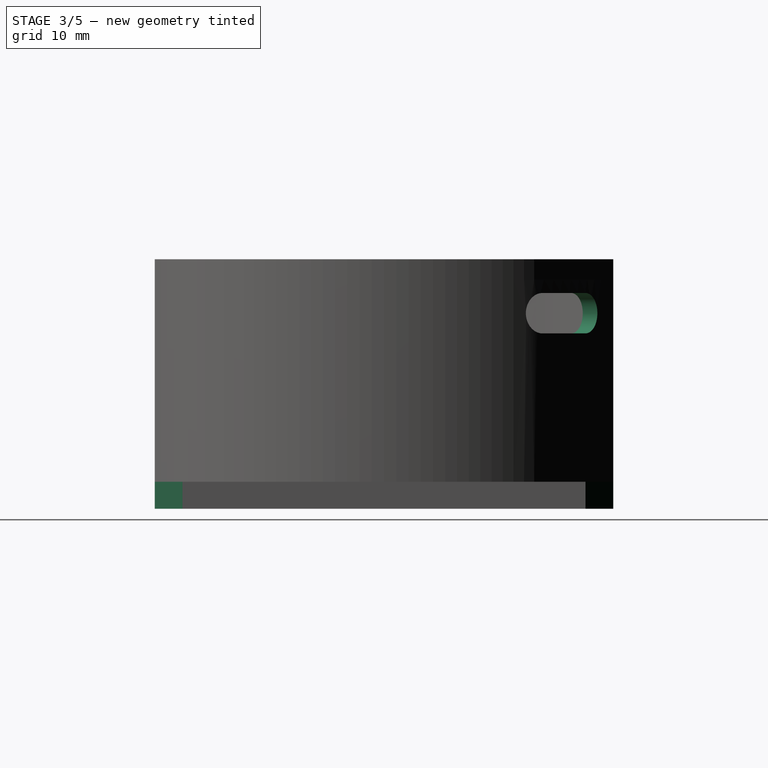
[diagram: stage 3 of 5 — right view after this stage's code; geometry added in this stage tinted green]
FEATURE [Sketcher::SketchObject] Sketch032
  Placement = pos=(0,0,37) rot=(0,0,1;0rad)
  Support = -> Pocket006 [Face11]
  sketch-geometry (8):
    g0: LineSegment StartX=-67.8823 StartY=0 StartZ=0 EndX=0 EndY=67.8823 EndZ=0
    g1: LineSegment StartX=67.8823 StartY=0 StartZ=0 EndX=0 EndY=67.8823 EndZ=0
    g2: LineSegment StartX=-67.8823 StartY=0 StartZ=0 EndX=0 EndY=-67.8823 EndZ=0
    g3: LineSegment StartX=0 StartY=-67.8823 StartZ=0 EndX=67.8823 EndY=0 EndZ=0
    g4: LineSegment StartX=-110 StartY=110 StartZ=0 EndX=110 EndY=110 EndZ=0
    g5: LineSegment StartX=110 StartY=110 StartZ=0 EndX=110 EndY=-110 EndZ=0
    g6: LineSegment StartX=110 StartY=-110 StartZ=0 EndX=-110 EndY=-110 EndZ=0
    g7: LineSegment StartX=-110 StartY=-110 StartZ=0 EndX=-110 EndY=110 EndZ=0
  constraints (25):
    c: PointOnObject(g0,g-1)
    c: PointOnObject(g0,g-2)
    c: PointOnObject(g1,g-1)
    c: Coincident(g1,g0)
    c: Coincident(g2,g0)
    c: Coincident(g3,g1)
    c: Coincident(g2,g3)
    c: PointOnObject(g2,g-2)
    c: Perpendicular(g0,g1)
    c: Perpendicular(g2,g0)
    c: Distance(g0,g1) = 96
    c: Coincident(g4,g5)
    c: Coincident(g5,g6)
    c: Coincident(g6,g7)
    c: Coincident(g7,g4)
    c: Horizontal(g4)
    c: Horizontal(g6)
    c: Vertical(g5)
    c: Vertical(g7)
    c: Equal(g3,g1)
    c: Symmetric(g6,g4,g-1)
    c: Equal(g7,g4)
    c: DistanceY(g7,g7) = 220
    c: Equal(g2,g1)
    c: Equal(g0,g1)
FEATURE [PartDesign::Pocket] Pocket007
  Length = 5
  Sketch = -> Sketch032
  Type = 1
FEATURE [Sketcher::SketchObject] Sketch033
  Placement = pos=(33.9411,33.9411,0) rot=(0.281085,0.678598,0.678598;2.59356rad)
  Support = -> Pocket007 [Face8]
  sketch-geometry (4):
    g0: ArcOfCircle CenterX=-4.5 CenterY=29 CenterZ=0 NormalX=0 NormalY=0 NormalZ=1 Radius=3 StartAngle=1.5708 EndAngle=4.71239
    g1: ArcOfCircle CenterX=4.5 CenterY=29 CenterZ=0 NormalX=0 NormalY=0 NormalZ=1 Radius=3 StartAngle=4.71239 EndAngle=7.85398
    g2: LineSegment StartX=-4.5 StartY=26 StartZ=0 EndX=4.5 EndY=26 EndZ=0
    g3: LineSegment StartX=-4.5 StartY=32 StartZ=0 EndX=4.5 EndY=32 EndZ=0
  constraints (10):
    c: Tangent(g0,g3) = 1.5708
    c: Tangent(g0,g2) = -1.5708
    c: Tangent(g2,g1) = -1.5708
    c: Tangent(g3,g1) = 1.5708
    c: Horizontal(g2)
    c: Equal(g0,g1)
    c: DistanceY(g-1,g0) = 26
    c: Symmetric(g1,g0,g-2)
    c: DistanceY(g0,g0) = 6
    c: DistanceX(g0,g1) = 9
FEATURE [PartDesign::Pocket] Pocket008
  Length = 20
  Sketch = -> Sketch033
  Type = 0
FEATURE [PartDesign::Fillet] Fillet
  Base = -> Pocket008 [Edge45]
  Radius = 1.1
FEATURE [PartDesign::Fillet] Fillet001
  Base = -> Fillet [Edge29]
  Radius = 1.1
FEATURE [PartDesign::Fillet] Fillet002
  Base = -> Fillet001 [Edge157]
  Radius = 1.1
FEATURE [PartDesign::Fillet] Fillet003
  Base = -> Fillet002 [Edge33]
  Radius = 1.1
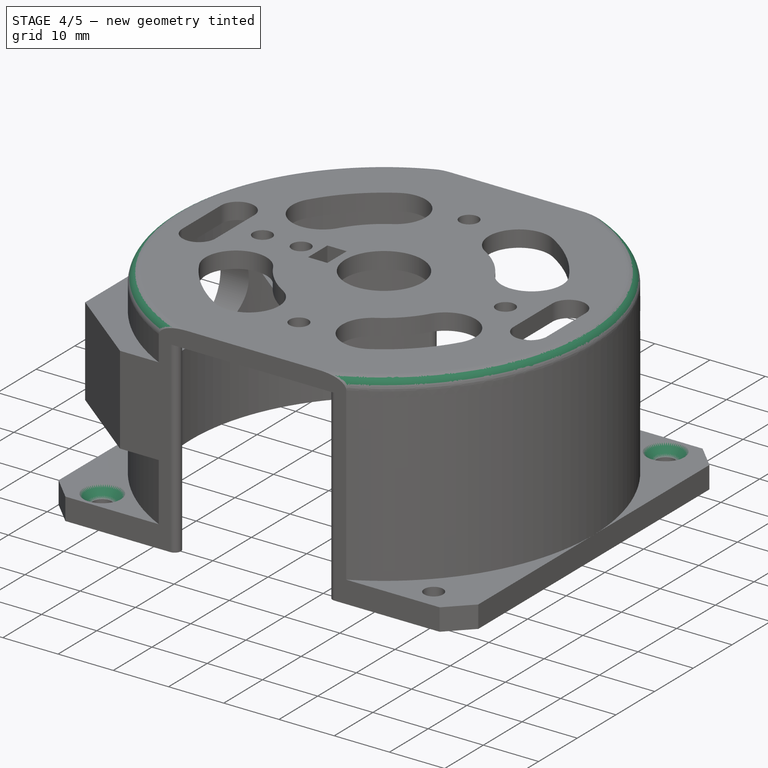
[diagram: stage 4 of 5 — iso view after this stage's code; geometry added in this stage tinted green]
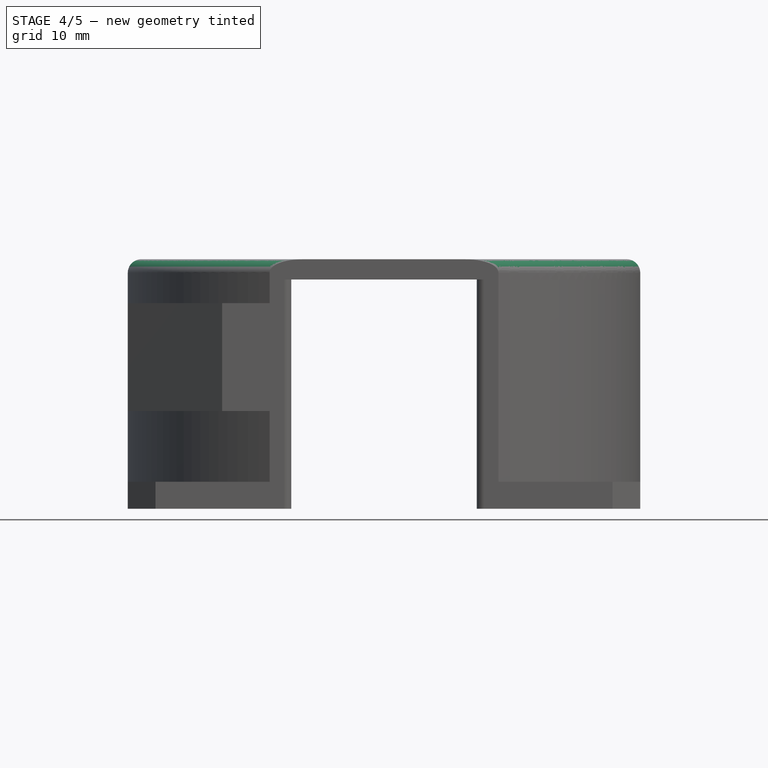
[diagram: stage 4 of 5 — front view after this stage's code; geometry added in this stage tinted green]
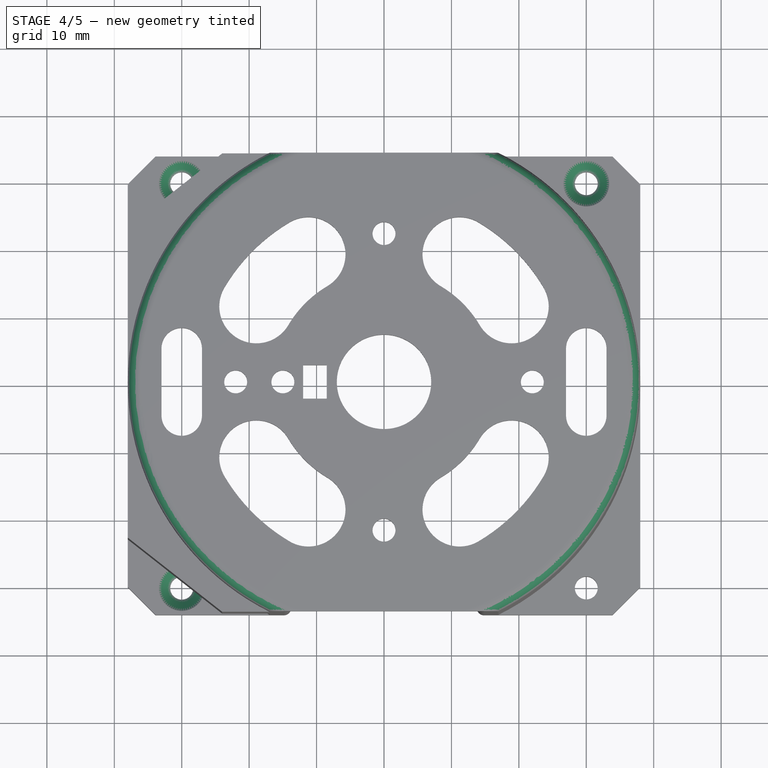
[diagram: stage 4 of 5 — top view after this stage's code; geometry added in this stage tinted green]
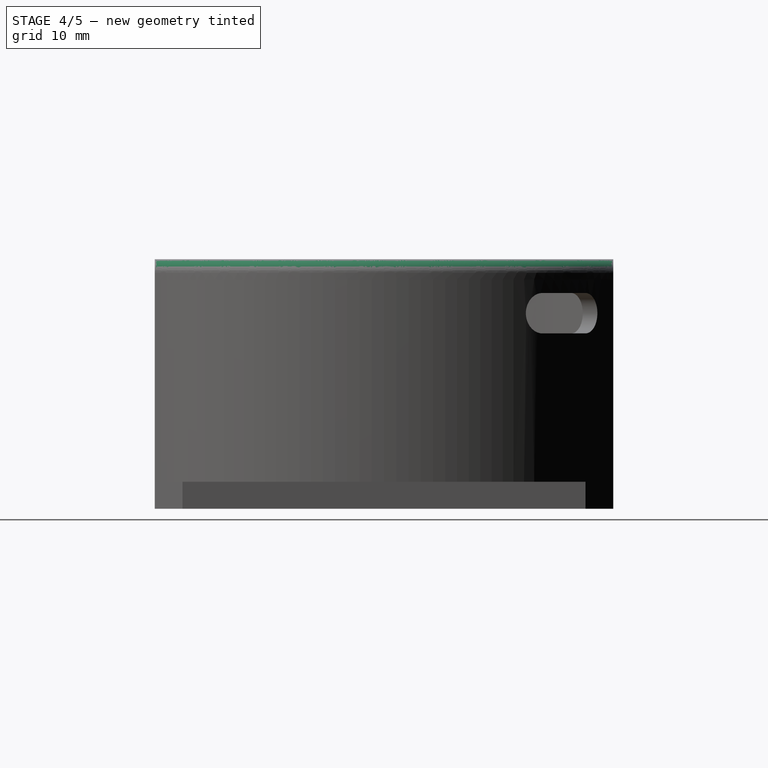
[diagram: stage 4 of 5 — right view after this stage's code; geometry added in this stage tinted green]
FEATURE [PartDesign::Fillet] Fillet004
  Base = -> Fillet003 [Edge96]
  Radius = 2
FEATURE [PartDesign::Fillet] Fillet005
  Base = -> Fillet004 [Edge28]
  Radius = 2
FEATURE [PartDesign::Chamfer] Chamfer
  Base = -> Fillet005 [Edge268]
  Size = 1.7
FEATURE [PartDesign::Chamfer] Chamfer001
  Base = -> Chamfer [Edge80]
  Size = 1.7
FEATURE [PartDesign::Chamfer] Chamfer002
  Base = -> Chamfer001 [Edge234]
  Size = 1.7
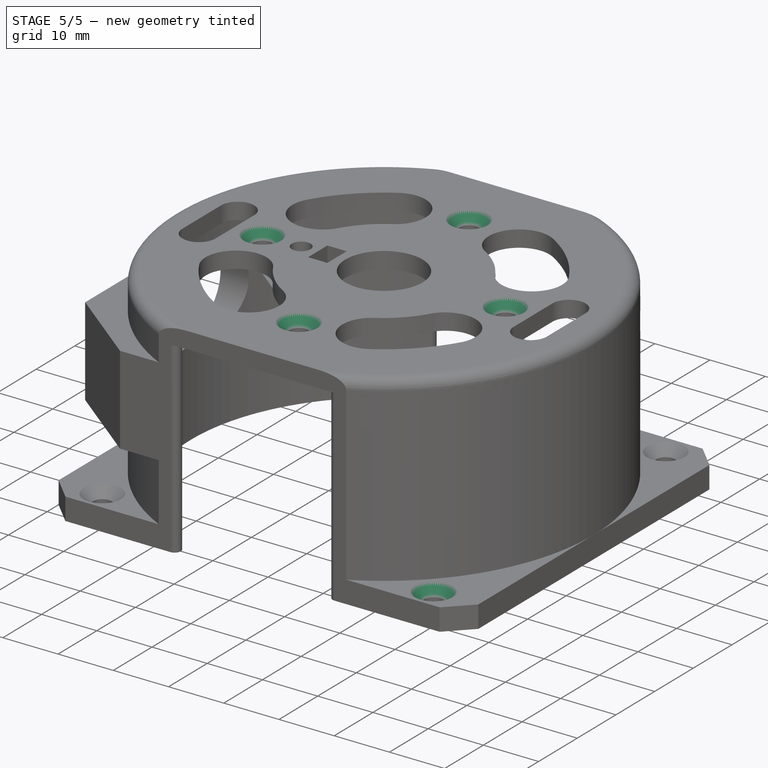
[diagram: stage 5 of 5 — iso view after this stage's code; geometry added in this stage tinted green]
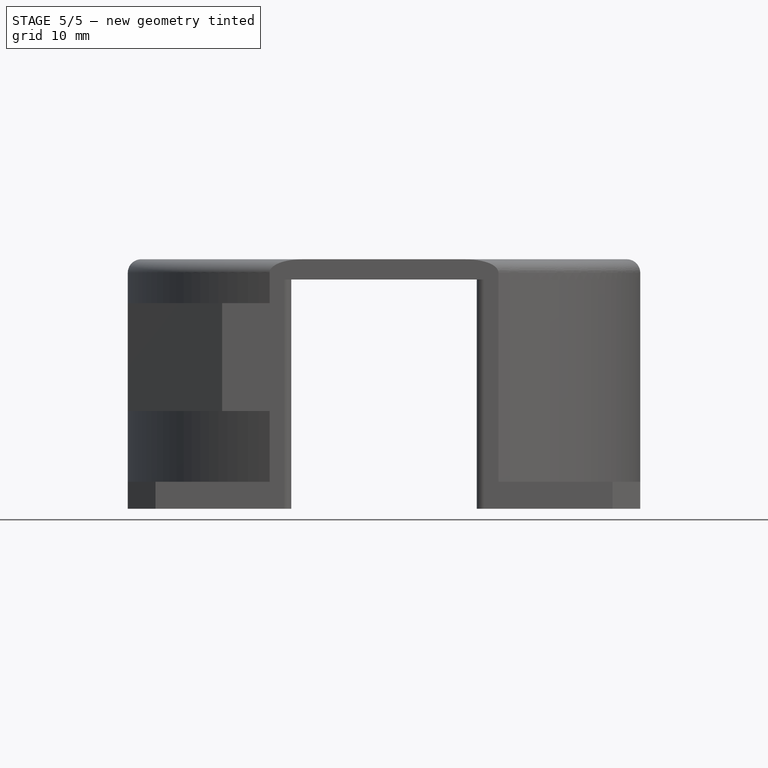
[diagram: stage 5 of 5 — front view after this stage's code; geometry added in this stage tinted green]
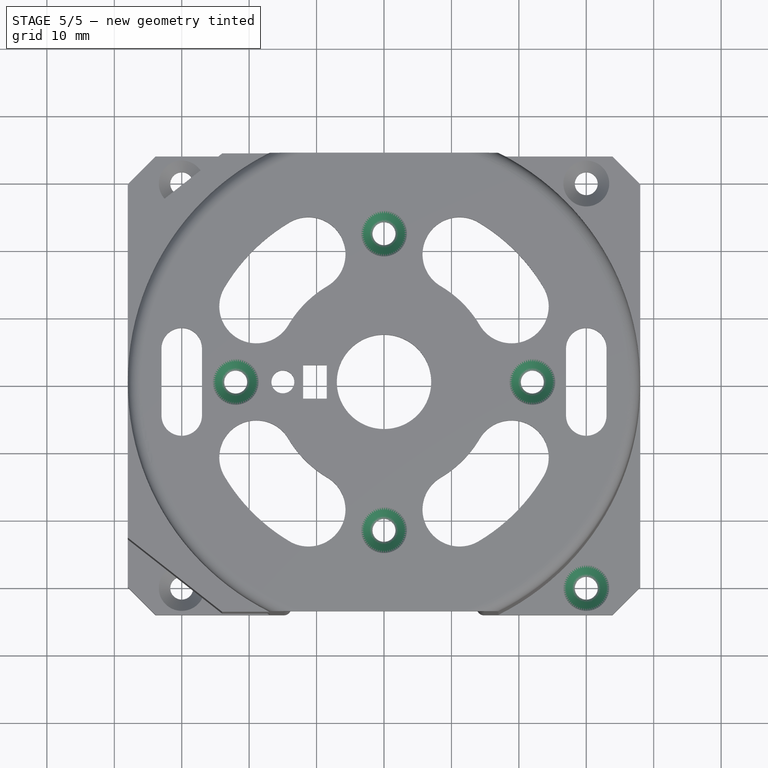
[diagram: stage 5 of 5 — top view after this stage's code; geometry added in this stage tinted green]
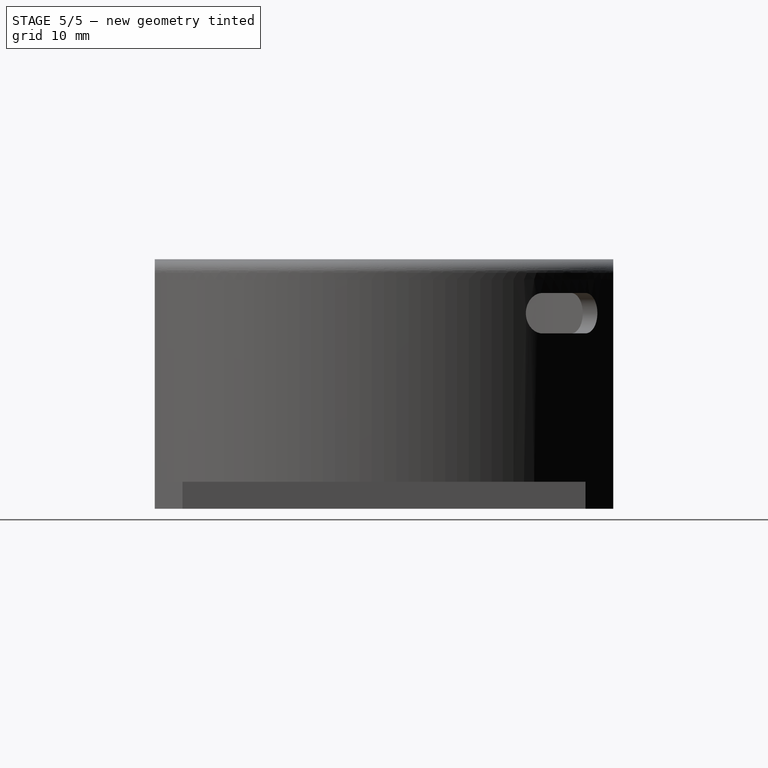
[diagram: stage 5 of 5 — right view after this stage's code; geometry added in this stage tinted green]
FEATURE [PartDesign::Chamfer] Chamfer003
  Base = -> Chamfer002 [Edge59]
  Size = 1.7
FEATURE [PartDesign::Chamfer] Chamfer004
  Base = -> Chamfer003 [Edge68]
  Size = 1.7
FEATURE [PartDesign::Chamfer] Chamfer005
  Base = -> Chamfer004 [Edge15]
  Size = 1.7
FEATURE [PartDesign::Chamfer] Chamfer006
  Base = -> Chamfer005 [Edge15]
  Size = 1.7
FEATURE [PartDesign::Chamfer] Chamfer007
  Base = -> Chamfer006 [Edge10]
  Size = 1.7
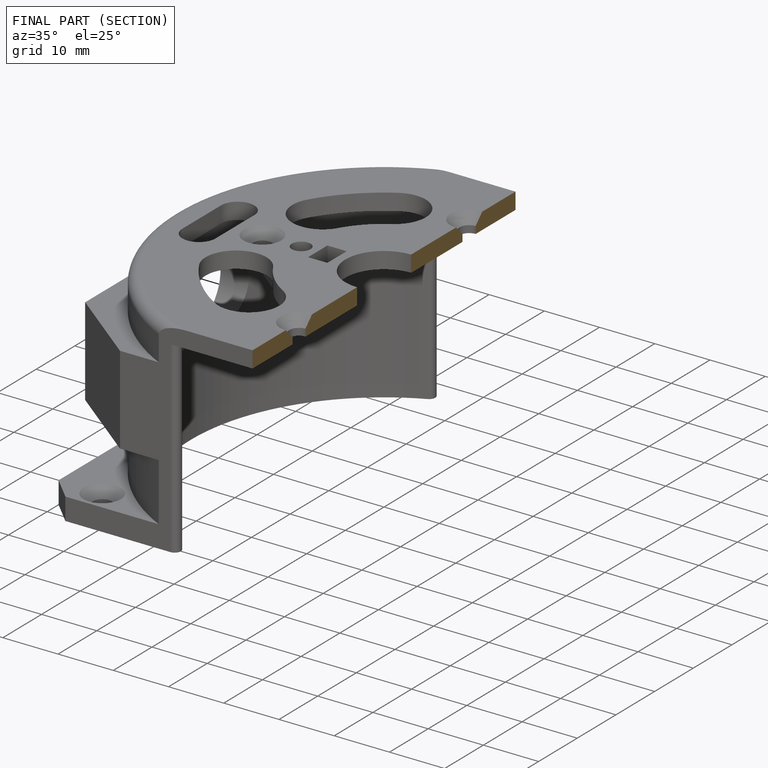
[diagram: finished part — half-section view (interior)]
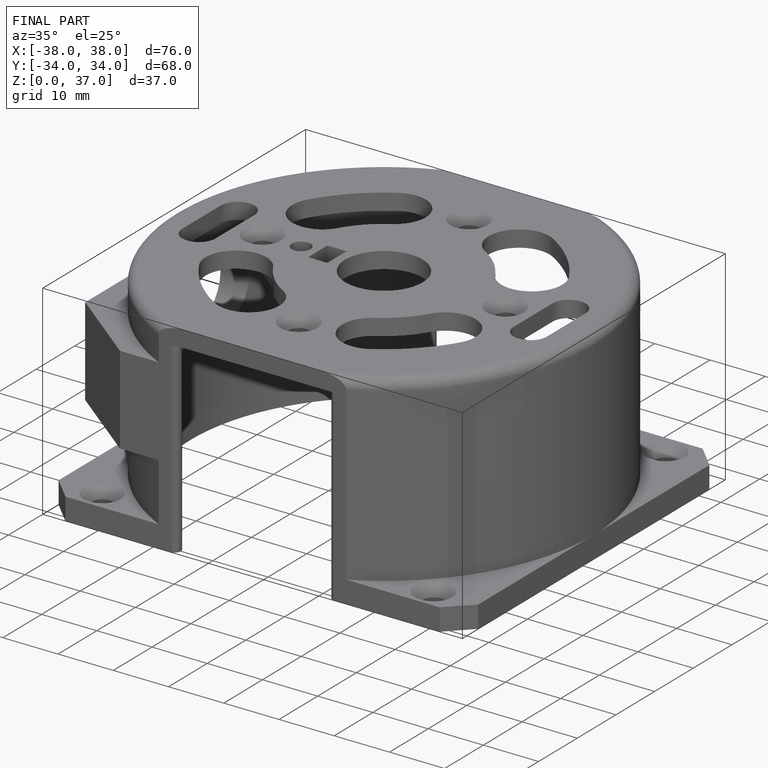
[diagram: finished part — iso view with bounding-box wireframe]
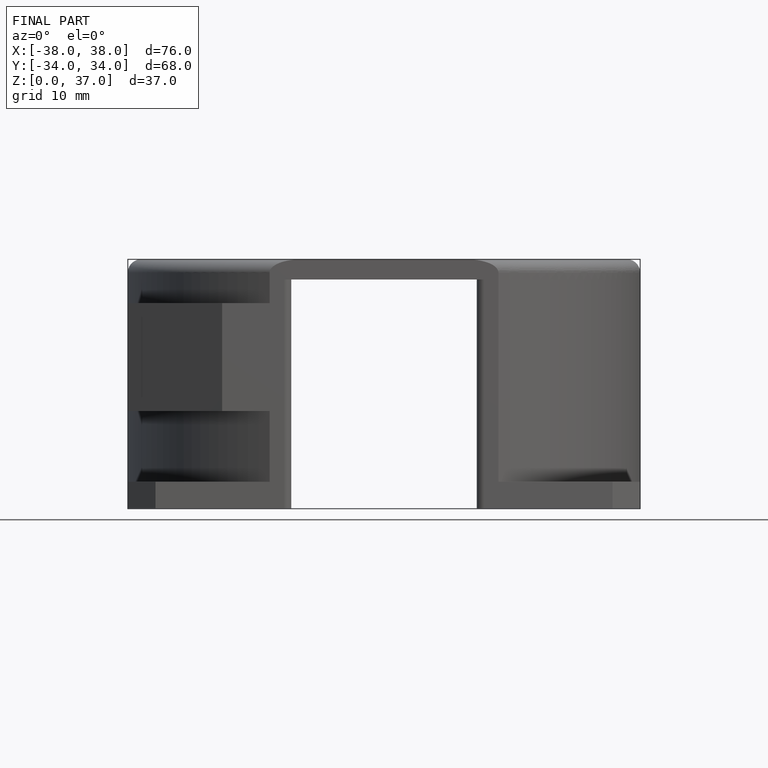
[diagram: finished part — front view with bounding-box wireframe]
